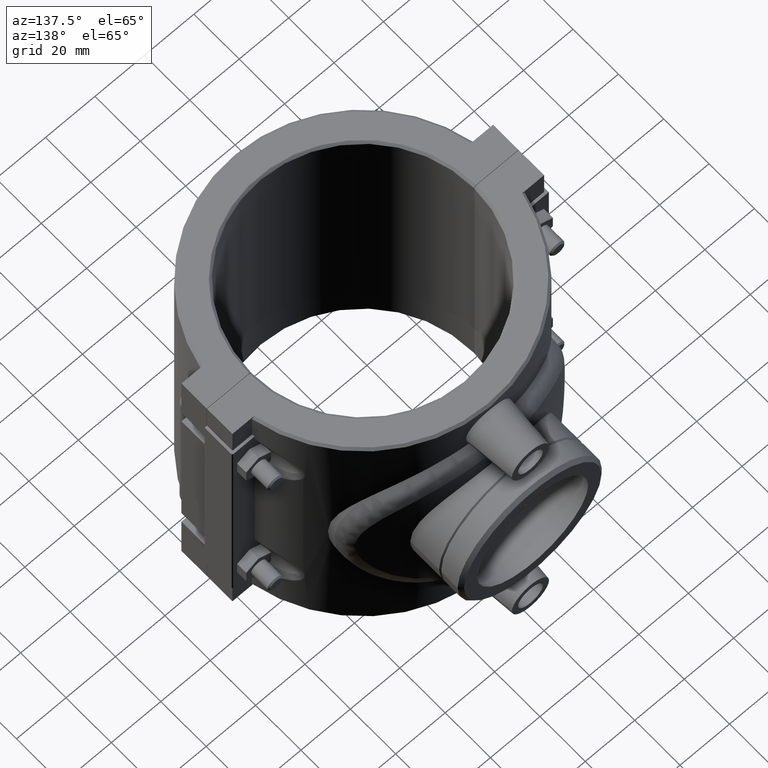
[diagram: clean part render]
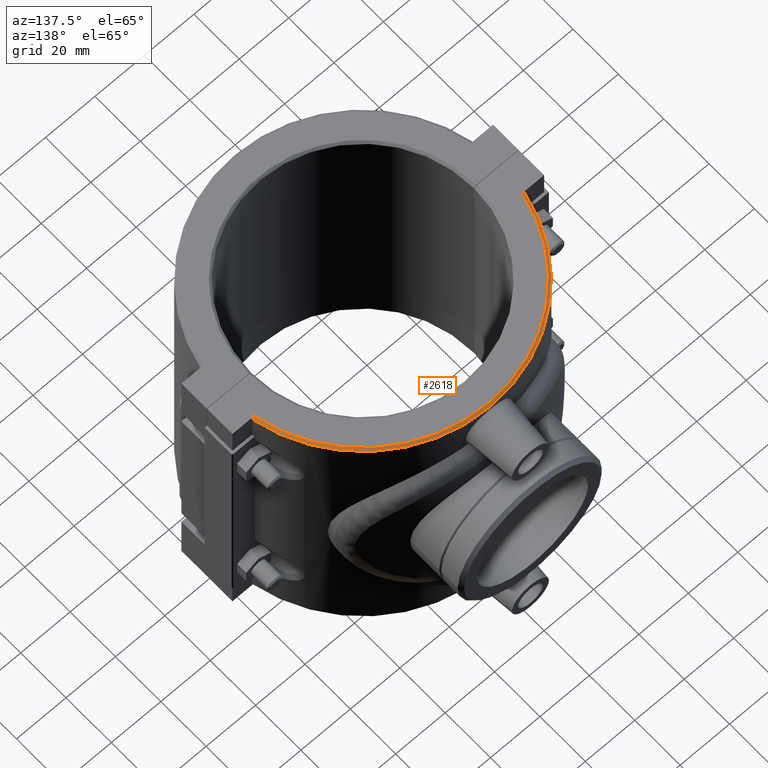
[diagram: same view with one face highlighted and labeled with its STEP entity id]
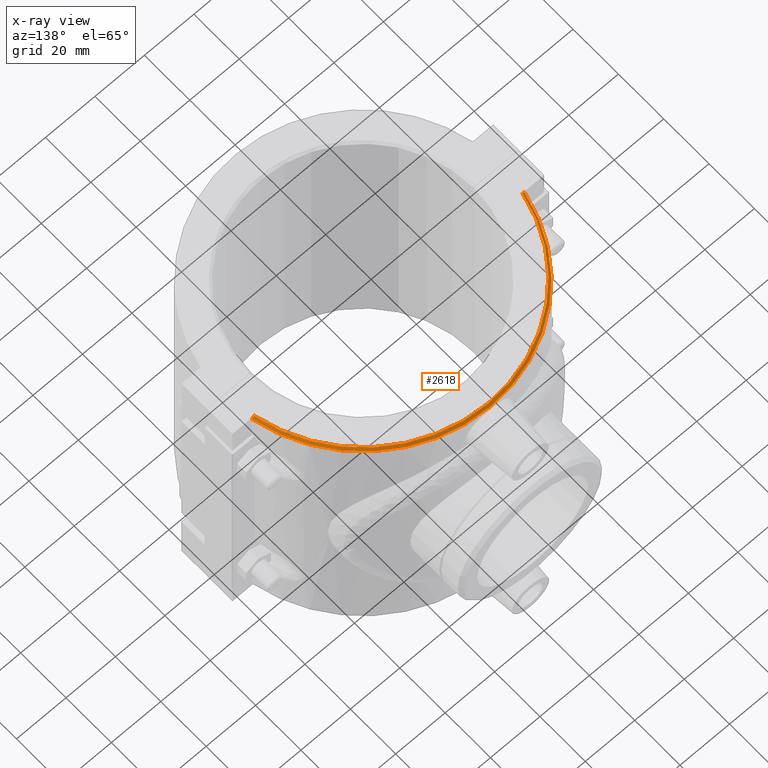
[diagram: x-ray of the same camera — body ghosted, the highlighted face saturated]
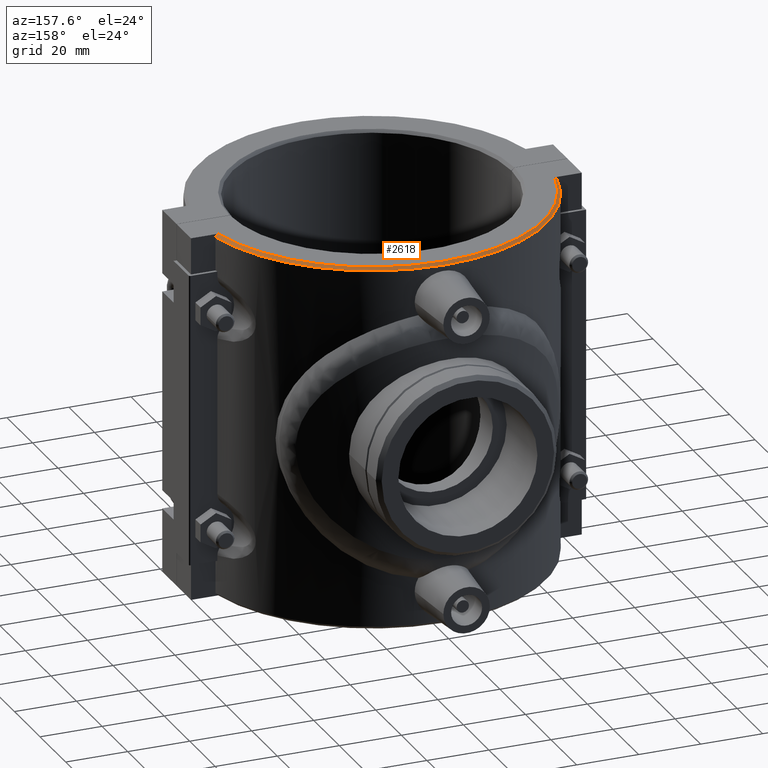
[diagram: same view with one face highlighted and labeled with its STEP entity id]
A machine part, auxiliary view. The second image highlights one B-rep face of the part: STEP entity #2618.
The next image is the same camera in x-ray: the body ghosted, the highlighted face saturated — about 0% of this face is hidden behind the body in this view.
A second angle (auxiliary view) of the same face is appended — the face is thin or edge-on in the first view.
In plain terms, the highlighted conical surface has half-angle 45 deg.
Its self-contained STEP definition (entity closure, byte-faithful):
#30=CONICAL_SURFACE('',#2825,55.8,45.);
#40=(
BOUNDED_CURVE()
B_SPLINE_CURVE(2,(#3786,#3787,#3788),.UNSPECIFIED.,.F.,.F.)
B_SPLINE_CURVE_WITH_KNOTS((3,3),(0.,0.128620455004873),.UNSPECIFIED.)
CURVE()
GEOMETRIC_REPRESENTATION_ITEM()
RATIONAL_B_SPLINE_CURVE((1.,1.00003389745317,1.))
REPRESENTATION_ITEM('')
);
#41=(
BOUNDED_CURVE()
B_SPLINE_CURVE(2,(#4032,#4033,#4034),.UNSPECIFIED.,.F.,.F.)
B_SPLINE_CURVE_WITH_KNOTS((3,3),(0.,0.128620455004872),.UNSPECIFIED.)
CURVE()
GEOMETRIC_REPRESENTATION_ITEM()
RATIONAL_B_SPLINE_CURVE((1.,1.00003389771639,1.))
REPRESENTATION_ITEM('')
);
#319=FACE_OUTER_BOUND('',#507,.T.);
#507=EDGE_LOOP('',(#2213,#2214,#2215,#2216));
#998=CIRCLE('',#2737,56.25);
#1030=CIRCLE('',#2815,55.35);
#1103=VERTEX_POINT('',#3783);
#1104=VERTEX_POINT('',#3785);
#1149=VERTEX_POINT('',#4029);
#1150=VERTEX_POINT('',#4031);
#1363=EDGE_CURVE('',#1104,#1103,#40,.F.);
#1423=EDGE_CURVE('',#1150,#1149,#41,.F.);
#1466=EDGE_CURVE('',#1149,#1104,#998,.T.);
#1596=EDGE_CURVE('',#1103,#1150,#1030,.T.);
#2213=ORIENTED_EDGE('',*,*,#1423,.T.);
#2214=ORIENTED_EDGE('',*,*,#1466,.T.);
#2215=ORIENTED_EDGE('',*,*,#1363,.T.);
#2216=ORIENTED_EDGE('',*,*,#1596,.T.);
#2618=ADVANCED_FACE('',(#319),#30,.T.);
#2737=AXIS2_PLACEMENT_3D('',#4596,#3130,#3131);
#2815=AXIS2_PLACEMENT_3D('',#5372,#3347,#3348);
#2825=AXIS2_PLACEMENT_3D('',#5407,#3373,#3374);
#3130=DIRECTION('center_axis',(0.,0.,1.));
#3131=DIRECTION('ref_axis',(1.,0.,0.));
#3347=DIRECTION('center_axis',(0.,0.,-1.));
#3348=DIRECTION('ref_axis',(1.,0.,0.));
#3373=DIRECTION('center_axis',(0.,0.,-1.));
#3374=DIRECTION('ref_axis',(1.,0.,0.));
#3783=CARTESIAN_POINT('',(-54.1946491823686,11.25,59.));
#3785=CARTESIAN_POINT('',(-55.1135192126215,11.25,58.1));
#3786=CARTESIAN_POINT('Ctrl Pts',(-54.1946491823686,11.25,59.));
#3787=CARTESIAN_POINT('Ctrl Pts',(-54.6503790770477,11.25,58.553782804624));
#3788=CARTESIAN_POINT('Ctrl Pts',(-55.1135192126215,11.25,58.1));
#4029=CARTESIAN_POINT('',(55.1135192126215,11.25,58.1));
#4031=CARTESIAN_POINT('',(54.1946491823686,11.25,59.));
#4032=CARTESIAN_POINT('Ctrl Pts',(55.1135192126215,11.25,58.1));
#4033=CARTESIAN_POINT('Ctrl Pts',(54.6503790770346,11.25,58.5537828046367));
#4034=CARTESIAN_POINT('Ctrl Pts',(54.1946491823686,11.25,59.));
#4596=CARTESIAN_POINT('Origin',(0.,0.,58.1));
#5372=CARTESIAN_POINT('Origin',(0.,0.,59.));
#5407=CARTESIAN_POINT('Origin',(0.,0.,58.55));